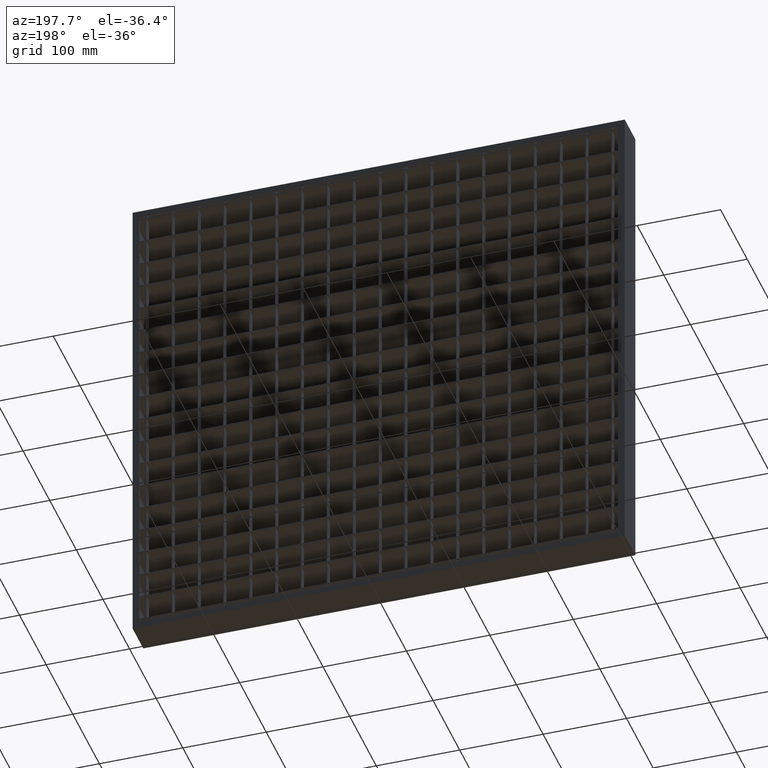
[diagram: clean part render]
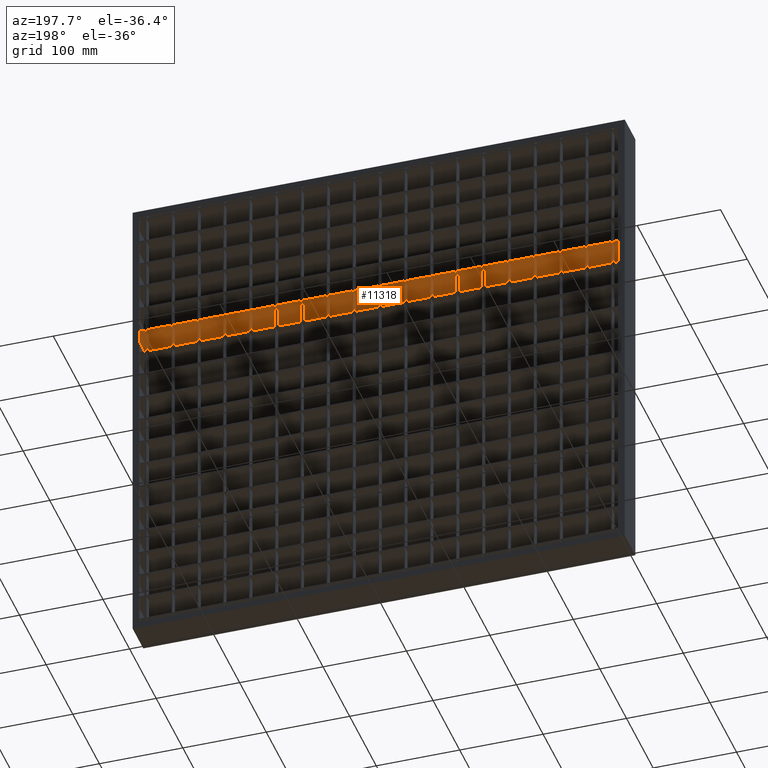
[diagram: same view with one face highlighted and labeled with its STEP entity id]
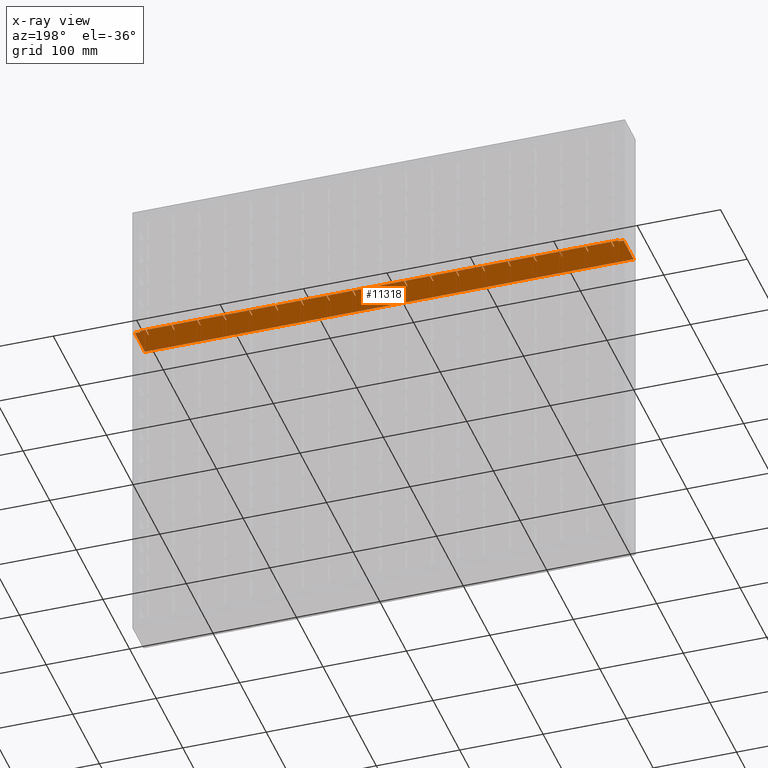
[diagram: x-ray of the same camera — body ghosted, the highlighted face saturated]
A machine part, auxiliary view. The second image highlights one B-rep face of the part: STEP entity #11318.
The next image is the same camera in x-ray: the body ghosted, the highlighted face saturated — about 0% of this face is hidden behind the body in this view.
In plain terms, the highlighted planar face has unit normal (0, 0, -1).
Its self-contained STEP definition (entity closure, byte-faithful):
#20 = CARTESIAN_POINT ( 'NONE',  ( 46.50000000000004300, 9.999999999999994700, -169.7500000000000600 ) ) ;
#23 = EDGE_CURVE ( 'NONE', #24355, #8506, #13608, .T. ) ;
#151 = VERTEX_POINT ( 'NONE', #36974 ) ;
#196 = ORIENTED_EDGE ( 'NONE', *, *, #32347, .T. ) ;
#248 = CARTESIAN_POINT ( 'NONE',  ( 588.0000000000001100, -20.00000000000000000, -169.7500000000000600 ) ) ;
#404 = LINE ( 'NONE', #51896, #36205 ) ;
#421 = LINE ( 'NONE', #53580, #6488 ) ;
#433 = CARTESIAN_POINT ( 'NONE',  ( 232.5000000000000300, 9.999999999999994700, -169.7500000000000600 ) ) ;
#435 = VERTEX_POINT ( 'NONE', #773 ) ;
#518 = VECTOR ( 'NONE', #14123, 1000.000000000000000 ) ;
#688 = VECTOR ( 'NONE', #8938, 1000.000000000000000 ) ;
#773 = CARTESIAN_POINT ( 'NONE',  ( 170.5000000000000300, 20.00000000000005300, -169.7500000000000600 ) ) ;
#902 = EDGE_CURVE ( 'NONE', #29369, #43824, #22272, .T. ) ;
#916 = DIRECTION ( 'NONE',  ( -1.000000000000000000, -3.061616997868382600E-016, 0.0000000000000000000 ) ) ;
#947 = CARTESIAN_POINT ( 'NONE',  ( 108.5000000000000400, 9.999999999999994700, -169.7500000000000600 ) ) ;
#1045 = LINE ( 'NONE', #6038, #16533 ) ;
#1052 = LINE ( 'NONE', #11525, #17246 ) ;
#1097 = CARTESIAN_POINT ( 'NONE',  ( 574.5000000000000000, 9.999999999999994700, -169.7500000000000600 ) ) ;
#1139 = CARTESIAN_POINT ( 'NONE',  ( 109.5000000000000400, 19.99999999999999600, -169.7500000000000600 ) ) ;
#1183 = VECTOR ( 'NONE', #30136, 1000.000000000000000 ) ;
#1189 = VECTOR ( 'NONE', #29413, 1000.000000000000000 ) ;
#1438 = CARTESIAN_POINT ( 'NONE',  ( 263.5000000000000600, -19.99999999999981200, -169.7500000000000600 ) ) ;
#1540 = VERTEX_POINT ( 'NONE', #41808 ) ;
#1562 = CARTESIAN_POINT ( 'NONE',  ( 77.50000000000001400, -19.99999999999981200, -169.7500000000000600 ) ) ;
#1578 = LINE ( 'NONE', #46264, #47530 ) ;
#1651 = VECTOR ( 'NONE', #22615, 1000.000000000000000 ) ;
#1774 = CARTESIAN_POINT ( 'NONE',  ( 628.0281151192510800, 20.00000000000019200, -169.7500000000000600 ) ) ;
#1831 = EDGE_CURVE ( 'NONE', #41408, #37181, #28867, .T. ) ;
#1832 = LINE ( 'NONE', #56002, #45073 ) ;
#1859 = LINE ( 'NONE', #36222, #18073 ) ;
#1971 = EDGE_CURVE ( 'NONE', #29369, #11925, #42375, .T. ) ;
#2193 = CARTESIAN_POINT ( 'NONE',  ( 628.0281151192510800, 9.999999999999994700, -169.7500000000000600 ) ) ;
#2228 = VECTOR ( 'NONE', #37198, 1000.000000000000000 ) ;
#2237 = LINE ( 'NONE', #54250, #46827 ) ;
#2324 = CARTESIAN_POINT ( 'NONE',  ( 387.5000000000000000, 9.999999999999998200, -169.7500000000000600 ) ) ;
#2387 = DIRECTION ( 'NONE',  ( 1.000000000000000000, -0.0000000000000000000, 0.0000000000000000000 ) ) ;
#2444 = DIRECTION ( 'NONE',  ( 0.0000000000000000000, 1.000000000000000000, 0.0000000000000000000 ) ) ;
#2677 = ORIENTED_EDGE ( 'NONE', *, *, #34980, .F. ) ;
#2684 = EDGE_CURVE ( 'NONE', #31565, #25357, #33457, .T. ) ;
#2763 = VECTOR ( 'NONE', #9502, 1000.000000000000000 ) ;
#2810 = VECTOR ( 'NONE', #2444, 1000.000000000000000 ) ;
#2815 = LINE ( 'NONE', #6553, #32555 ) ;
#3243 = CARTESIAN_POINT ( 'NONE',  ( 202.5000000000000300, 19.99999999999999600, -169.7500000000000600 ) ) ;
#3412 = EDGE_CURVE ( 'NONE', #39621, #24695, #1045, .T. ) ;
#3437 = ORIENTED_EDGE ( 'NONE', *, *, #26130, .F. ) ;
#3524 = VECTOR ( 'NONE', #40725, 1000.000000000000000 ) ;
#3547 = CARTESIAN_POINT ( 'NONE',  ( 263.5000000000000600, 9.999999999999994700, -169.7500000000000600 ) ) ;
#3649 = CARTESIAN_POINT ( 'NONE',  ( 108.5000000000000400, 20.00000000000003200, -169.7500000000000600 ) ) ;
#3917 = CARTESIAN_POINT ( 'NONE',  ( 543.5000000000001100, 9.999999999999994700, -169.7500000000000600 ) ) ;
#3944 = VERTEX_POINT ( 'NONE', #12329 ) ;
#3965 = EDGE_CURVE ( 'NONE', #16757, #35352, #31067, .T. ) ;
#4098 = ORIENTED_EDGE ( 'NONE', *, *, #33063, .T. ) ;
#4248 = ORIENTED_EDGE ( 'NONE', *, *, #18427, .F. ) ;
#4274 = ORIENTED_EDGE ( 'NONE', *, *, #38783, .F. ) ;
#4469 = DIRECTION ( 'NONE',  ( -1.000000000000000000, -3.061616997868382600E-016, 0.0000000000000000000 ) ) ;
#4506 = CARTESIAN_POINT ( 'NONE',  ( 201.5000000000000300, 9.999999999999994700, -169.7500000000000600 ) ) ;
#4580 = LINE ( 'NONE', #43235, #13360 ) ;
#4635 = LINE ( 'NONE', #52350, #52623 ) ;
#4770 = ORIENTED_EDGE ( 'NONE', *, *, #47706, .F. ) ;
#4771 = VERTEX_POINT ( 'NONE', #3243 ) ;
#4868 = CARTESIAN_POINT ( 'NONE',  ( 419.5000000000000600, -19.99999999999981200, -169.7500000000000600 ) ) ;
#4950 = LINE ( 'NONE', #20498, #15086 ) ;
#4956 = LINE ( 'NONE', #39809, #19783 ) ;
#5012 = FACE_OUTER_BOUND ( 'NONE', #30919, .T. ) ;
#5029 = EDGE_CURVE ( 'NONE', #53617, #24355, #32318, .T. ) ;
#5065 = DIRECTION ( 'NONE',  ( 1.000000000000000000, -0.0000000000000000000, 0.0000000000000000000 ) ) ;
#5112 = EDGE_CURVE ( 'NONE', #19612, #55160, #34327, .T. ) ;
#5123 = DIRECTION ( 'NONE',  ( 1.000000000000000000, -0.0000000000000000000, 0.0000000000000000000 ) ) ;
#5166 = CARTESIAN_POINT ( 'NONE',  ( 356.5000000000001100, -19.99999999999981200, -169.7500000000000600 ) ) ;
#5192 = DIRECTION ( 'NONE',  ( 0.0000000000000000000, -1.000000000000000000, 0.0000000000000000000 ) ) ;
#5461 = CARTESIAN_POINT ( 'NONE',  ( 628.0281151192510800, 9.999999999999994700, -169.7500000000000600 ) ) ;
#5524 = EDGE_CURVE ( 'NONE', #38790, #37200, #16050, .T. ) ;
#5794 = LINE ( 'NONE', #26516, #32108 ) ;
#5880 = VERTEX_POINT ( 'NONE', #54968 ) ;
#6009 = EDGE_CURVE ( 'NONE', #31320, #7472, #421, .T. ) ;
#6038 = CARTESIAN_POINT ( 'NONE',  ( 232.5000000000000300, -19.99999999999981200, -169.7500000000000600 ) ) ;
#6133 = VECTOR ( 'NONE', #2387, 1000.000000000000000 ) ;
#6221 = VECTOR ( 'NONE', #36874, 1000.000000000000000 ) ;
#6270 = EDGE_CURVE ( 'NONE', #8506, #20003, #29391, .T. ) ;
#6295 = DIRECTION ( 'NONE',  ( 1.000000000000000000, -0.0000000000000000000, 0.0000000000000000000 ) ) ;
#6324 = EDGE_CURVE ( 'NONE', #5880, #41543, #5794, .T. ) ;
#6327 = VECTOR ( 'NONE', #38660, 1000.000000000000000 ) ;
#6392 = DIRECTION ( 'NONE',  ( -1.000000000000000000, -3.061616997868382600E-016, 0.0000000000000000000 ) ) ;
#6406 = LINE ( 'NONE', #42851, #30795 ) ;
#6429 = EDGE_CURVE ( 'NONE', #28576, #43824, #24698, .T. ) ;
#6431 = CARTESIAN_POINT ( 'NONE',  ( 202.5000000000000300, 9.999999999999994700, -169.7500000000000600 ) ) ;
#6457 = VERTEX_POINT ( 'NONE', #14097 ) ;
#6488 = VECTOR ( 'NONE', #49626, 1000.000000000000000 ) ;
#6500 = EDGE_CURVE ( 'NONE', #18781, #18751, #38195, .T. ) ;
#6553 = CARTESIAN_POINT ( 'NONE',  ( 628.0281151192510800, 20.00000000000019200, -169.7500000000000600 ) ) ;
#6604 = EDGE_CURVE ( 'NONE', #44035, #9384, #35459, .T. ) ;
#6738 = LINE ( 'NONE', #21922, #15545 ) ;
#7001 = CARTESIAN_POINT ( 'NONE',  ( 628.0281151192510800, 20.00000000000019200, -169.7500000000000600 ) ) ;
#7018 = LINE ( 'NONE', #30896, #52950 ) ;
#7036 = CARTESIAN_POINT ( 'NONE',  ( 588.0000000000002300, 18.00000000000000400, -169.7500000000000600 ) ) ;
#7058 = LINE ( 'NONE', #40338, #34786 ) ;
#7350 = EDGE_CURVE ( 'NONE', #54487, #33828, #7018, .T. ) ;
#7354 = CARTESIAN_POINT ( 'NONE',  ( 387.5000000000000000, 19.99999999999999600, -169.7500000000000600 ) ) ;
#7400 = VERTEX_POINT ( 'NONE', #52605 ) ;
#7418 = VERTEX_POINT ( 'NONE', #47903 ) ;
#7472 = VERTEX_POINT ( 'NONE', #18986 ) ;
#7474 = DIRECTION ( 'NONE',  ( -1.000000000000000000, 0.0000000000000000000, 0.0000000000000000000 ) ) ;
#7535 = EDGE_CURVE ( 'NONE', #28987, #19612, #4956, .T. ) ;
#7545 = VERTEX_POINT ( 'NONE', #14472 ) ;
#7550 = VECTOR ( 'NONE', #24345, 1000.000000000000000 ) ;
#7607 = CARTESIAN_POINT ( 'NONE',  ( 294.5000000000000600, -19.99999999999981200, -169.7500000000000600 ) ) ;
#7699 = ORIENTED_EDGE ( 'NONE', *, *, #7535, .T. ) ;
#7737 = EDGE_CURVE ( 'NONE', #26276, #33112, #46142, .T. ) ;
#7812 = LINE ( 'NONE', #47200, #49063 ) ;
#7895 = ORIENTED_EDGE ( 'NONE', *, *, #34941, .F. ) ;
#7944 = ORIENTED_EDGE ( 'NONE', *, *, #34393, .F. ) ;
#8154 = LINE ( 'NONE', #37884, #52742 ) ;
#8285 = CARTESIAN_POINT ( 'NONE',  ( 2.000000000000003600, 18.00000000000000400, -169.7500000000000600 ) ) ;
#8315 = EDGE_CURVE ( 'NONE', #40728, #10917, #16985, .T. ) ;
#8345 = DIRECTION ( 'NONE',  ( 1.000000000000000000, -0.0000000000000000000, 0.0000000000000000000 ) ) ;
#8381 = ORIENTED_EDGE ( 'NONE', *, *, #36271, .F. ) ;
#8484 = CARTESIAN_POINT ( 'NONE',  ( 628.0281151192510800, 20.00000000000019200, -169.7500000000000600 ) ) ;
#8506 = VERTEX_POINT ( 'NONE', #51175 ) ;
#8699 = DIRECTION ( 'NONE',  ( -1.000000000000000000, -3.061616997868382600E-016, 0.0000000000000000000 ) ) ;
#8732 = VERTEX_POINT ( 'NONE', #35655 ) ;
#8938 = DIRECTION ( 'NONE',  ( 0.0000000000000000000, 1.000000000000000000, 0.0000000000000000000 ) ) ;
#8962 = LINE ( 'NONE', #16818, #52888 ) ;
#8998 = CARTESIAN_POINT ( 'NONE',  ( 388.5000000000000000, -19.99999999999981200, -169.7500000000000600 ) ) ;
#9085 = DIRECTION ( 'NONE',  ( -1.000000000000000000, 0.0000000000000000000, 0.0000000000000000000 ) ) ;
#9133 = LINE ( 'NONE', #13916, #18560 ) ;
#9153 = VECTOR ( 'NONE', #42438, 1000.000000000000000 ) ;
#9187 = LINE ( 'NONE', #33673, #20650 ) ;
#9256 = DIRECTION ( 'NONE',  ( 0.0000000000000000000, -1.000000000000000000, 0.0000000000000000000 ) ) ;
#9375 = VECTOR ( 'NONE', #27353, 1000.000000000000000 ) ;
#9384 = VERTEX_POINT ( 'NONE', #39652 ) ;
#9502 = DIRECTION ( 'NONE',  ( 0.0000000000000000000, -1.000000000000000000, 0.0000000000000000000 ) ) ;
#9631 = CARTESIAN_POINT ( 'NONE',  ( 588.0000000000001100, -19.99999999999981200, -169.7500000000000600 ) ) ;
#9707 = VERTEX_POINT ( 'NONE', #3649 ) ;
#9749 = ORIENTED_EDGE ( 'NONE', *, *, #19351, .F. ) ;
#9874 = VERTEX_POINT ( 'NONE', #248 ) ;
#10235 = EDGE_CURVE ( 'NONE', #3944, #36562, #46414, .T. ) ;
#10256 = DIRECTION ( 'NONE',  ( 0.0000000000000000000, 1.000000000000000000, 0.0000000000000000000 ) ) ;
#10271 = DIRECTION ( 'NONE',  ( 0.0000000000000000000, -1.000000000000000000, 0.0000000000000000000 ) ) ;
#10339 = CARTESIAN_POINT ( 'NONE',  ( 628.0281151192510800, 20.00000000000019200, -169.7500000000000600 ) ) ;
#10736 = ORIENTED_EDGE ( 'NONE', *, *, #11166, .F. ) ;
#10765 = VERTEX_POINT ( 'NONE', #947 ) ;
#10896 = EDGE_CURVE ( 'NONE', #43203, #49199, #19272, .T. ) ;
#10917 = VERTEX_POINT ( 'NONE', #3547 ) ;
#10987 = EDGE_CURVE ( 'NONE', #40866, #41408, #17200, .T. ) ;
#11000 = VECTOR ( 'NONE', #42660, 1000.000000000000000 ) ;
#11047 = VERTEX_POINT ( 'NONE', #4506 ) ;
#11048 = CARTESIAN_POINT ( 'NONE',  ( 628.0281151192510800, 9.999999999999994700, -169.7500000000000600 ) ) ;
#11166 = EDGE_CURVE ( 'NONE', #30888, #40866, #51649, .T. ) ;
#11318 = ADVANCED_FACE ( 'NONE', ( #5012 ), #25133, .T. ) ;
#11359 = CARTESIAN_POINT ( 'NONE',  ( 628.0281151192510800, 9.999999999999994700, -169.7500000000000600 ) ) ;
#11525 = CARTESIAN_POINT ( 'NONE',  ( 628.0281151192510800, 20.00000000000019200, -169.7500000000000600 ) ) ;
#11567 = CARTESIAN_POINT ( 'NONE',  ( 357.5000000000001100, 9.999999999999994700, -169.7500000000000600 ) ) ;
#11925 = VERTEX_POINT ( 'NONE', #2324 ) ;
#11930 = VERTEX_POINT ( 'NONE', #7036 ) ;
#11937 = LINE ( 'NONE', #48334, #51814 ) ;
#12030 = CARTESIAN_POINT ( 'NONE',  ( 2.000000000000003600, -20.00000000000000000, -169.7500000000001100 ) ) ;
#12037 = EDGE_CURVE ( 'NONE', #28229, #19904, #17717, .T. ) ;
#12041 = CARTESIAN_POINT ( 'NONE',  ( 171.5000000000000300, 9.999999999999994700, -169.7500000000000600 ) ) ;
#12113 = DIRECTION ( 'NONE',  ( 0.0000000000000000000, 1.000000000000000000, 0.0000000000000000000 ) ) ;
#12188 = DIRECTION ( 'NONE',  ( -1.000000000000000000, -3.061616997868382600E-016, 0.0000000000000000000 ) ) ;
#12192 = DIRECTION ( 'NONE',  ( 0.0000000000000000000, 1.000000000000000000, 0.0000000000000000000 ) ) ;
#12238 = VECTOR ( 'NONE', #35913, 1000.000000000000000 ) ;
#12329 = CARTESIAN_POINT ( 'NONE',  ( 77.50000000000004300, 9.999999999999994700, -169.7500000000000600 ) ) ;
#12375 = CARTESIAN_POINT ( 'NONE',  ( 480.5000000000000000, -19.99999999999981200, -169.7500000000000600 ) ) ;
#12439 = ORIENTED_EDGE ( 'NONE', *, *, #49816, .F. ) ;
#12571 = ORIENTED_EDGE ( 'NONE', *, *, #47478, .F. ) ;
#12833 = CARTESIAN_POINT ( 'NONE',  ( 628.0281151192510800, -19.99999999999981200, -169.7500000000000600 ) ) ;
#12930 = CARTESIAN_POINT ( 'NONE',  ( 388.5000000000000000, 19.99999999999999600, -169.7500000000000600 ) ) ;
#13036 = CARTESIAN_POINT ( 'NONE',  ( 78.50000000000004300, 19.99999999999999600, -169.7500000000000600 ) ) ;
#13096 = CARTESIAN_POINT ( 'NONE',  ( 46.49999999999998600, -19.99999999999981200, -169.7500000000000600 ) ) ;
#13191 = LINE ( 'NONE', #12833, #23959 ) ;
#13226 = VECTOR ( 'NONE', #42992, 1000.000000000000000 ) ;
#13260 = EDGE_CURVE ( 'NONE', #151, #44924, #36642, .T. ) ;
#13280 = ORIENTED_EDGE ( 'NONE', *, *, #902, .F. ) ;
#13360 = VECTOR ( 'NONE', #18123, 1000.000000000000000 ) ;
#13466 = CARTESIAN_POINT ( 'NONE',  ( 139.5000000000000000, 20.00000000000004300, -169.7500000000000600 ) ) ;
#13533 = ORIENTED_EDGE ( 'NONE', *, *, #5112, .T. ) ;
#13571 = VECTOR ( 'NONE', #49789, 1000.000000000000000 ) ;
#13608 = LINE ( 'NONE', #5461, #17670 ) ;
#13697 = VERTEX_POINT ( 'NONE', #48971 ) ;
#13712 = VERTEX_POINT ( 'NONE', #18754 ) ;
#13916 = CARTESIAN_POINT ( 'NONE',  ( 15.50000000000006900, -19.99999999999981200, -169.7500000000000600 ) ) ;
#14097 = CARTESIAN_POINT ( 'NONE',  ( 140.5000000000000300, 19.99999999999999600, -169.7500000000000600 ) ) ;
#14123 = DIRECTION ( 'NONE',  ( 0.0000000000000000000, 1.000000000000000000, 0.0000000000000000000 ) ) ;
#14217 = VERTEX_POINT ( 'NONE', #13036 ) ;
#14254 = VECTOR ( 'NONE', #15335, 1000.000000000000000 ) ;
#14329 = VERTEX_POINT ( 'NONE', #26962 ) ;
#14385 = LINE ( 'NONE', #10339, #17726 ) ;
#14420 = VERTEX_POINT ( 'NONE', #45318 ) ;
#14472 = CARTESIAN_POINT ( 'NONE',  ( 481.5000000000000000, 19.99999999999999600, -169.7500000000000600 ) ) ;
#14550 = VERTEX_POINT ( 'NONE', #12930 ) ;
#14563 = CARTESIAN_POINT ( 'NONE',  ( 295.0000000000000600, 18.00000000000000400, -169.7500000000000600 ) ) ;
#14728 = LINE ( 'NONE', #56059, #51867 ) ;
#14797 = VECTOR ( 'NONE', #4469, 1000.000000000000000 ) ;
#14800 = CARTESIAN_POINT ( 'NONE',  ( 387.5000000000000000, -19.99999999999981200, -169.7500000000000600 ) ) ;
#14894 = DIRECTION ( 'NONE',  ( 1.000000000000000000, -0.0000000000000000000, 0.0000000000000000000 ) ) ;
#14947 = EDGE_CURVE ( 'NONE', #31791, #54487, #6738, .T. ) ;
#15039 = CARTESIAN_POINT ( 'NONE',  ( 356.5000000000001100, 9.999999999999998200, -169.7500000000000600 ) ) ;
#15086 = VECTOR ( 'NONE', #51068, 1000.000000000000000 ) ;
#15234 = DIRECTION ( 'NONE',  ( 0.0000000000000000000, -1.000000000000000000, 0.0000000000000000000 ) ) ;
#15332 = ORIENTED_EDGE ( 'NONE', *, *, #18118, .F. ) ;
#15335 = DIRECTION ( 'NONE',  ( -1.000000000000000000, -3.061616997868382600E-016, 0.0000000000000000000 ) ) ;
#15363 = ORIENTED_EDGE ( 'NONE', *, *, #6500, .T. ) ;
#15422 = CARTESIAN_POINT ( 'NONE',  ( 628.0281151192510800, 20.00000000000019200, -169.7500000000000600 ) ) ;
#15479 = VECTOR ( 'NONE', #32221, 1000.000000000000000 ) ;
#15545 = VECTOR ( 'NONE', #8345, 1000.000000000000000 ) ;
#15606 = CARTESIAN_POINT ( 'NONE',  ( 628.0281151192510800, 9.999999999999994700, -169.7500000000000600 ) ) ;
#15708 = CARTESIAN_POINT ( 'NONE',  ( 449.5000000000000600, -19.99999999999981200, -169.7500000000000600 ) ) ;
#15789 = DIRECTION ( 'NONE',  ( 1.000000000000000000, -0.0000000000000000000, 0.0000000000000000000 ) ) ;
#16050 = LINE ( 'NONE', #55282, #1189 ) ;
#16076 = EDGE_CURVE ( 'NONE', #31511, #151, #55894, .T. ) ;
#16079 = ORIENTED_EDGE ( 'NONE', *, *, #3965, .F. ) ;
#16104 = EDGE_CURVE ( 'NONE', #14420, #40728, #1832, .T. ) ;
#16141 = DIRECTION ( 'NONE',  ( 0.0000000000000000000, -1.000000000000000000, 0.0000000000000000000 ) ) ;
#16533 = VECTOR ( 'NONE', #40620, 1000.000000000000000 ) ;
#16575 = DIRECTION ( 'NONE',  ( 0.0000000000000000000, 1.000000000000000000, 0.0000000000000000000 ) ) ;
#16668 = VERTEX_POINT ( 'NONE', #38005 ) ;
#16673 = VECTOR ( 'NONE', #10256, 1000.000000000000000 ) ;
#16757 = VERTEX_POINT ( 'NONE', #20 ) ;
#16818 = CARTESIAN_POINT ( 'NONE',  ( 628.0281151192510800, 9.999999999999994700, -169.7500000000000600 ) ) ;
#16985 = LINE ( 'NONE', #11359, #19751 ) ;
#17176 = LINE ( 'NONE', #38472, #6327 ) ;
#17200 = LINE ( 'NONE', #8484, #50995 ) ;
#17220 = ORIENTED_EDGE ( 'NONE', *, *, #49991, .F. ) ;
#17223 = ORIENTED_EDGE ( 'NONE', *, *, #52485, .F. ) ;
#17246 = VECTOR ( 'NONE', #28904, 1000.000000000000000 ) ;
#17408 = LINE ( 'NONE', #1774, #30235 ) ;
#17670 = VECTOR ( 'NONE', #14894, 1000.000000000000000 ) ;
#17717 = LINE ( 'NONE', #45191, #6221 ) ;
#17726 = VECTOR ( 'NONE', #31287, 1000.000000000000000 ) ;
#17756 = VECTOR ( 'NONE', #6295, 1000.000000000000000 ) ;
#17865 = EDGE_CURVE ( 'NONE', #5880, #31791, #44833, .T. ) ;
#17871 = EDGE_CURVE ( 'NONE', #37181, #10765, #40789, .T. ) ;
#17950 = CARTESIAN_POINT ( 'NONE',  ( 170.5000000000000300, 9.999999999999994700, -169.7500000000000600 ) ) ;
#18073 = VECTOR ( 'NONE', #6392, 1000.000000000000000 ) ;
#18100 = CARTESIAN_POINT ( 'NONE',  ( 628.0281151192510800, 9.999999999999994700, -169.7500000000000600 ) ) ;
#18118 = EDGE_CURVE ( 'NONE', #13712, #3944, #8962, .T. ) ;
#18123 = DIRECTION ( 'NONE',  ( -1.000000000000000000, -3.061616997868382600E-016, 0.0000000000000000000 ) ) ;
#18187 = DIRECTION ( 'NONE',  ( -1.000000000000000000, 0.0000000000000000000, 0.0000000000000000000 ) ) ;
#18336 = LINE ( 'NONE', #33876, #41317 ) ;
#18427 = EDGE_CURVE ( 'NONE', #6457, #16668, #2237, .T. ) ;
#18477 = ORIENTED_EDGE ( 'NONE', *, *, #6324, .F. ) ;
#18560 = VECTOR ( 'NONE', #39805, 1000.000000000000000 ) ;
#18731 = ORIENTED_EDGE ( 'NONE', *, *, #21240, .T. ) ;
#18751 = VERTEX_POINT ( 'NONE', #30996 ) ;
#18754 = CARTESIAN_POINT ( 'NONE',  ( 78.50000000000004300, 9.999999999999994700, -169.7500000000000600 ) ) ;
#18781 = VERTEX_POINT ( 'NONE', #39741 ) ;
#18870 = CARTESIAN_POINT ( 'NONE',  ( 419.5000000000000600, 19.99999999999999600, -169.7500000000000600 ) ) ;
#18887 = DIRECTION ( 'NONE',  ( 1.000000000000000000, 0.0000000000000000000, 0.0000000000000000000 ) ) ;
#18986 = CARTESIAN_POINT ( 'NONE',  ( 233.5000000000000300, 19.99999999999999600, -169.7500000000000600 ) ) ;
#19187 = EDGE_CURVE ( 'NONE', #13697, #36709, #6406, .T. ) ;
#19272 = LINE ( 'NONE', #55860, #34147 ) ;
#19306 = DIRECTION ( 'NONE',  ( -1.000000000000000000, 0.0000000000000000000, 0.0000000000000000000 ) ) ;
#19351 = EDGE_CURVE ( 'NONE', #19904, #16757, #404, .T. ) ;
#19467 = CARTESIAN_POINT ( 'NONE',  ( 16.49999999999995700, -19.99999999999981200, -169.7500000000000600 ) ) ;
#19514 = CARTESIAN_POINT ( 'NONE',  ( 628.0281151192510800, 9.999999999999994700, -169.7500000000000600 ) ) ;
#19581 = ORIENTED_EDGE ( 'NONE', *, *, #40696, .T. ) ;
#19612 = VERTEX_POINT ( 'NONE', #50183 ) ;
#19623 = CARTESIAN_POINT ( 'NONE',  ( 512.5000000000000000, 9.999999999999994700, -169.7500000000000600 ) ) ;
#19751 = VECTOR ( 'NONE', #19306, 1000.000000000000000 ) ;
#19783 = VECTOR ( 'NONE', #40546, 1000.000000000000000 ) ;
#19793 = EDGE_CURVE ( 'NONE', #45366, #14550, #23976, .T. ) ;
#19819 = DIRECTION ( 'NONE',  ( 0.0000000000000000000, -1.000000000000000000, 0.0000000000000000000 ) ) ;
#19836 = DIRECTION ( 'NONE',  ( 0.0000000000000000000, -1.000000000000000000, 0.0000000000000000000 ) ) ;
#19904 = VERTEX_POINT ( 'NONE', #48650 ) ;
#19975 = EDGE_CURVE ( 'NONE', #7400, #44035, #9133, .T. ) ;
#20003 = VERTEX_POINT ( 'NONE', #53339 ) ;
#20121 = ORIENTED_EDGE ( 'NONE', *, *, #3412, .F. ) ;
#20364 = DIRECTION ( 'NONE',  ( 0.0000000000000000000, -1.000000000000000000, 0.0000000000000000000 ) ) ;
#20438 = VECTOR ( 'NONE', #5065, 1000.000000000000000 ) ;
#20498 = CARTESIAN_POINT ( 'NONE',  ( 574.5000000000000000, -19.99999999999981200, -169.7500000000000600 ) ) ;
#20571 = VECTOR ( 'NONE', #20364, 1000.000000000000000 ) ;
#20650 = VECTOR ( 'NONE', #42397, 1000.000000000000000 ) ;
#20775 = VECTOR ( 'NONE', #15234, 1000.000000000000000 ) ;
#20785 = ORIENTED_EDGE ( 'NONE', *, *, #6429, .T. ) ;
#20816 = DIRECTION ( 'NONE',  ( 0.0000000000000000000, 1.000000000000000000, 0.0000000000000000000 ) ) ;
#20903 = VECTOR ( 'NONE', #35667, 1000.000000000000000 ) ;
#20911 = EDGE_CURVE ( 'NONE', #16668, #30888, #27169, .T. ) ;
#20967 = LINE ( 'NONE', #2193, #6133 ) ;
#21028 = ORIENTED_EDGE ( 'NONE', *, *, #47318, .F. ) ;
#21184 = CARTESIAN_POINT ( 'NONE',  ( 512.5000000000000000, 19.99999999999999600, -169.7500000000000600 ) ) ;
#21240 = EDGE_CURVE ( 'NONE', #52024, #9384, #36616, .T. ) ;
#21266 = ORIENTED_EDGE ( 'NONE', *, *, #10987, .F. ) ;
#21323 = ORIENTED_EDGE ( 'NONE', *, *, #20911, .F. ) ;
#21396 = ORIENTED_EDGE ( 'NONE', *, *, #1971, .T. ) ;
#21430 = ORIENTED_EDGE ( 'NONE', *, *, #42572, .F. ) ;
#21633 = DIRECTION ( 'NONE',  ( 0.0000000000000000000, 1.000000000000000000, 0.0000000000000000000 ) ) ;
#21881 = DIRECTION ( 'NONE',  ( -1.000000000000000000, 0.0000000000000000000, 0.0000000000000000000 ) ) ;
#21922 = CARTESIAN_POINT ( 'NONE',  ( 628.0281151192510800, 9.999999999999994700, -169.7500000000000600 ) ) ;
#22001 = LINE ( 'NONE', #37023, #34832 ) ;
#22203 = CARTESIAN_POINT ( 'NONE',  ( 77.50000000000001400, 20.00000000000002100, -169.7500000000000600 ) ) ;
#22272 = LINE ( 'NONE', #47174, #55363 ) ;
#22281 = VECTOR ( 'NONE', #55972, 1000.000000000000000 ) ;
#22294 = EDGE_CURVE ( 'NONE', #9874, #11930, #34400, .T. ) ;
#22615 = DIRECTION ( 'NONE',  ( 0.0000000000000000000, 1.000000000000000000, 0.0000000000000000000 ) ) ;
#22618 = ORIENTED_EDGE ( 'NONE', *, *, #16076, .T. ) ;
#22806 = ORIENTED_EDGE ( 'NONE', *, *, #10896, .T. ) ;
#22880 = CARTESIAN_POINT ( 'NONE',  ( 325.5000000000000600, 19.99999999999999600, -169.7500000000000600 ) ) ;
#22909 = EDGE_CURVE ( 'NONE', #33938, #52525, #46500, .T. ) ;
#23419 = CARTESIAN_POINT ( 'NONE',  ( 573.5000000000001100, 19.99999999999999600, -169.7500000000000600 ) ) ;
#23447 = ORIENTED_EDGE ( 'NONE', *, *, #24134, .F. ) ;
#23540 = CARTESIAN_POINT ( 'NONE',  ( 294.5000000000000600, 20.00000000000009200, -169.7500000000000600 ) ) ;
#23735 = LINE ( 'NONE', #26861, #12238 ) ;
#23959 = VECTOR ( 'NONE', #8699, 1000.000000000000000 ) ;
#23976 = LINE ( 'NONE', #8998, #51654 ) ;
#24124 = LINE ( 'NONE', #34387, #43032 ) ;
#24134 = EDGE_CURVE ( 'NONE', #46672, #11047, #9187, .T. ) ;
#24345 = DIRECTION ( 'NONE',  ( -1.000000000000000000, -3.061616997868382600E-016, 0.0000000000000000000 ) ) ;
#24355 = VERTEX_POINT ( 'NONE', #39758 ) ;
#24586 = ORIENTED_EDGE ( 'NONE', *, *, #51926, .F. ) ;
#24695 = VERTEX_POINT ( 'NONE', #24766 ) ;
#24698 = LINE ( 'NONE', #38653, #13226 ) ;
#24725 = ORIENTED_EDGE ( 'NONE', *, *, #17871, .F. ) ;
#24766 = CARTESIAN_POINT ( 'NONE',  ( 232.4999999999999700, 20.00000000000007100, -169.7500000000000600 ) ) ;
#24813 = VECTOR ( 'NONE', #45009, 1000.000000000000000 ) ;
#24862 = CARTESIAN_POINT ( 'NONE',  ( 264.5000000000000600, 9.999999999999994700, -169.7500000000000600 ) ) ;
#25041 = CARTESIAN_POINT ( 'NONE',  ( 326.5000000000000600, -19.99999999999981200, -169.7500000000000600 ) ) ;
#25133 = PLANE ( 'NONE',  #37412 ) ;
#25357 = VERTEX_POINT ( 'NONE', #43406 ) ;
#25432 = EDGE_CURVE ( 'NONE', #11925, #45366, #46755, .T. ) ;
#25452 = DIRECTION ( 'NONE',  ( -1.000000000000000000, -3.061616997868382600E-016, 0.0000000000000000000 ) ) ;
#25458 = EDGE_CURVE ( 'NONE', #25357, #41543, #33900, .T. ) ;
#25608 = CARTESIAN_POINT ( 'NONE',  ( 418.5000000000000600, 9.999999999999998200, -169.7500000000000600 ) ) ;
#25677 = CARTESIAN_POINT ( 'NONE',  ( 628.0281151192510800, 9.999999999999994700, -169.7500000000000600 ) ) ;
#25817 = DIRECTION ( 'NONE',  ( -1.000000000000000000, -3.061616997868382600E-016, 0.0000000000000000000 ) ) ;
#25850 = VECTOR ( 'NONE', #15789, 1000.000000000000000 ) ;
#25958 = VERTEX_POINT ( 'NONE', #43140 ) ;
#25977 = CARTESIAN_POINT ( 'NONE',  ( 628.0281151192510800, 20.00000000000019200, -169.7500000000000600 ) ) ;
#26130 = EDGE_CURVE ( 'NONE', #53617, #33938, #23735, .T. ) ;
#26251 = LINE ( 'NONE', #25977, #14797 ) ;
#26276 = VERTEX_POINT ( 'NONE', #3917 ) ;
#26516 = CARTESIAN_POINT ( 'NONE',  ( 628.0281151192510800, 20.00000000000019200, -169.7500000000000600 ) ) ;
#26742 = ORIENTED_EDGE ( 'NONE', *, *, #26948, .F. ) ;
#26809 = CARTESIAN_POINT ( 'NONE',  ( 511.5000000000000600, 9.999999999999998200, -169.7500000000000600 ) ) ;
#26861 = CARTESIAN_POINT ( 'NONE',  ( 628.0281151192510800, 20.00000000000019200, -169.7500000000000600 ) ) ;
#26893 = ORIENTED_EDGE ( 'NONE', *, *, #1831, .F. ) ;
#26940 = ORIENTED_EDGE ( 'NONE', *, *, #10235, .F. ) ;
#26945 = LINE ( 'NONE', #51115, #37808 ) ;
#26948 = EDGE_CURVE ( 'NONE', #25958, #7400, #51371, .T. ) ;
#26951 = CARTESIAN_POINT ( 'NONE',  ( 450.5000000000000600, 19.99999999999999600, -169.7500000000000600 ) ) ;
#26962 = CARTESIAN_POINT ( 'NONE',  ( 16.50000000000001400, 19.99999999999999600, -169.7500000000001700 ) ) ;
#26967 = ORIENTED_EDGE ( 'NONE', *, *, #46200, .F. ) ;
#26971 = EDGE_CURVE ( 'NONE', #18751, #26276, #20967, .T. ) ;
#27106 = EDGE_CURVE ( 'NONE', #27966, #28576, #40582, .T. ) ;
#27153 = VERTEX_POINT ( 'NONE', #38810 ) ;
#27169 = LINE ( 'NONE', #25677, #42751 ) ;
#27353 = DIRECTION ( 'NONE',  ( 0.0000000000000000000, -1.000000000000000000, 0.0000000000000000000 ) ) ;
#27492 = VECTOR ( 'NONE', #5192, 1000.000000000000000 ) ;
#27495 = CARTESIAN_POINT ( 'NONE',  ( 295.5000000000000600, 9.999999999999994700, -169.7500000000000600 ) ) ;
#27552 = ORIENTED_EDGE ( 'NONE', *, *, #36495, .F. ) ;
#27875 = CARTESIAN_POINT ( 'NONE',  ( 295.5000000000000600, 19.99999999999999600, -169.7500000000000600 ) ) ;
#27966 = VERTEX_POINT ( 'NONE', #15039 ) ;
#28038 = VECTOR ( 'NONE', #40571, 1000.000000000000000 ) ;
#28229 = VERTEX_POINT ( 'NONE', #39399 ) ;
#28500 = DIRECTION ( 'NONE',  ( 0.0000000000000000000, 1.000000000000000000, 0.0000000000000000000 ) ) ;
#28510 = DIRECTION ( 'NONE',  ( 0.0000000000000000000, 1.000000000000000000, 0.0000000000000000000 ) ) ;
#28568 = EDGE_CURVE ( 'NONE', #53656, #20003, #17408, .T. ) ;
#28576 = VERTEX_POINT ( 'NONE', #11567 ) ;
#28816 = EDGE_CURVE ( 'NONE', #11047, #8732, #24124, .T. ) ;
#28867 = LINE ( 'NONE', #52928, #27492 ) ;
#28904 = DIRECTION ( 'NONE',  ( -1.000000000000000000, -3.061616997868382600E-016, 0.0000000000000000000 ) ) ;
#28972 = DIRECTION ( 'NONE',  ( -1.000000000000000000, -3.061616997868382600E-016, 0.0000000000000000000 ) ) ;
#28987 = VERTEX_POINT ( 'NONE', #23419 ) ;
#29012 = CARTESIAN_POINT ( 'NONE',  ( 388.5000000000000000, 9.999999999999994700, -169.7500000000000600 ) ) ;
#29015 = EDGE_CURVE ( 'NONE', #36709, #11930, #50459, .T. ) ;
#29016 = CARTESIAN_POINT ( 'NONE',  ( 511.5000000000000600, 19.99999999999999600, -169.7500000000000600 ) ) ;
#29144 = VECTOR ( 'NONE', #25817, 1000.000000000000000 ) ;
#29369 = VERTEX_POINT ( 'NONE', #7354 ) ;
#29391 = LINE ( 'NONE', #25041, #9153 ) ;
#29413 = DIRECTION ( 'NONE',  ( 0.0000000000000000000, 1.000000000000000000, 0.0000000000000000000 ) ) ;
#29492 = DIRECTION ( 'NONE',  ( 0.0000000000000000000, 0.0000000000000000000, -1.000000000000000000 ) ) ;
#29502 = CARTESIAN_POINT ( 'NONE',  ( 628.0281151192510800, 20.00000000000019200, -169.7500000000000600 ) ) ;
#29587 = VECTOR ( 'NONE', #28510, 1000.000000000000000 ) ;
#29611 = DIRECTION ( 'NONE',  ( 0.0000000000000000000, -1.000000000000000000, 0.0000000000000000000 ) ) ;
#29802 = ORIENTED_EDGE ( 'NONE', *, *, #54702, .F. ) ;
#29917 = VERTEX_POINT ( 'NONE', #23540 ) ;
#30048 = CARTESIAN_POINT ( 'NONE',  ( 628.0281151192510800, -19.99999999999981200, -169.7500000000000600 ) ) ;
#30136 = DIRECTION ( 'NONE',  ( 0.0000000000000000000, -1.000000000000000000, 0.0000000000000000000 ) ) ;
#30230 = ORIENTED_EDGE ( 'NONE', *, *, #22909, .F. ) ;
#30235 = VECTOR ( 'NONE', #32337, 1000.000000000000000 ) ;
#30255 = ORIENTED_EDGE ( 'NONE', *, *, #12037, .F. ) ;
#30366 = DIRECTION ( 'NONE',  ( -1.000000000000000000, 0.0000000000000000000, 0.0000000000000000000 ) ) ;
#30620 = CARTESIAN_POINT ( 'NONE',  ( 109.5000000000000400, 9.999999999999994700, -169.7500000000000600 ) ) ;
#30699 = ORIENTED_EDGE ( 'NONE', *, *, #41113, .F. ) ;
#30764 = VECTOR ( 'NONE', #12188, 1000.000000000000000 ) ;
#30795 = VECTOR ( 'NONE', #50603, 1000.000000000000000 ) ;
#30888 = VERTEX_POINT ( 'NONE', #42348 ) ;
#30896 = CARTESIAN_POINT ( 'NONE',  ( 450.5000000000000600, -19.99999999999981200, -169.7500000000000600 ) ) ;
#30919 = EDGE_LOOP ( 'NONE', ( #13533, #40519, #2677, #31552, #37310, #34070, #43638, #48308, #38011, #18731, #45870, #53320, #26742, #24586, #37830, #16079, #9749, #30255, #52340, #26940, #15332, #7895, #55704, #56017, #24725, #26893, #21266, #10736, #21323, #4248, #4770, #8381, #48172, #42459, #17223, #34205, #23447, #29802, #27552, #20121, #7944, #17220, #36173, #12439, #55812, #49586, #26967, #47580, #12571, #30230, #3437, #47901, #43711, #34733, #53469, #4098, #32335, #20785, #13280, #21396, #50209, #50555, #4274, #36508, #37436, #36149, #18477, #51271, #34312, #47621, #21430, #22618, #54192, #51037, #21028, #22806, #196, #19581, #30699, #15363, #50302, #35277, #55616, #7699 ) ) ;
#30996 = CARTESIAN_POINT ( 'NONE',  ( 542.5000000000000000, 9.999999999999998200, -169.7500000000000600 ) ) ;
#31067 = LINE ( 'NONE', #13096, #688 ) ;
#31279 = CARTESIAN_POINT ( 'NONE',  ( 139.5000000000000600, -19.99999999999981200, -169.7500000000000600 ) ) ;
#31287 = DIRECTION ( 'NONE',  ( -1.000000000000000000, -3.061616997868382600E-016, 0.0000000000000000000 ) ) ;
#31320 = VERTEX_POINT ( 'NONE', #51127 ) ;
#31398 = EDGE_CURVE ( 'NONE', #53067, #31565, #49613, .T. ) ;
#31511 = VERTEX_POINT ( 'NONE', #51493 ) ;
#31552 = ORIENTED_EDGE ( 'NONE', *, *, #19187, .T. ) ;
#31565 = VERTEX_POINT ( 'NONE', #25608 ) ;
#31630 = CARTESIAN_POINT ( 'NONE',  ( 542.5000000000000000, -19.99999999999981200, -169.7500000000000600 ) ) ;
#31791 = VERTEX_POINT ( 'NONE', #40182 ) ;
#32108 = VECTOR ( 'NONE', #43565, 1000.000000000000000 ) ;
#32221 = DIRECTION ( 'NONE',  ( 0.0000000000000000000, -1.000000000000000000, 0.0000000000000000000 ) ) ;
#32318 = LINE ( 'NONE', #48731, #9375 ) ;
#32335 = ORIENTED_EDGE ( 'NONE', *, *, #27106, .T. ) ;
#32337 = DIRECTION ( 'NONE',  ( -1.000000000000000000, -3.061616997868382600E-016, 0.0000000000000000000 ) ) ;
#32347 = EDGE_CURVE ( 'NONE', #49199, #49286, #48167, .T. ) ;
#32436 = CARTESIAN_POINT ( 'NONE',  ( 356.5000000000001100, 19.99999999999999600, -169.7500000000000600 ) ) ;
#32555 = VECTOR ( 'NONE', #36748, 1000.000000000000000 ) ;
#32593 = CARTESIAN_POINT ( 'NONE',  ( 628.0281151192510800, 20.00000000000019200, -169.7500000000000600 ) ) ;
#32856 = DIRECTION ( 'NONE',  ( -1.000000000000000000, 0.0000000000000000000, 0.0000000000000000000 ) ) ;
#33030 = CARTESIAN_POINT ( 'NONE',  ( 7.999999999999991100, 18.00000000000000400, -169.7500000000001100 ) ) ;
#33041 = VECTOR ( 'NONE', #33817, 1000.000000000000000 ) ;
#33063 = EDGE_CURVE ( 'NONE', #53656, #27966, #39275, .T. ) ;
#33112 = VERTEX_POINT ( 'NONE', #44058 ) ;
#33457 = LINE ( 'NONE', #36381, #28038 ) ;
#33673 = CARTESIAN_POINT ( 'NONE',  ( 628.0281151192510800, 9.999999999999994700, -169.7500000000000600 ) ) ;
#33817 = DIRECTION ( 'NONE',  ( -1.000000000000000000, -3.061616997868382600E-016, 0.0000000000000000000 ) ) ;
#33828 = VERTEX_POINT ( 'NONE', #26951 ) ;
#33876 = CARTESIAN_POINT ( 'NONE',  ( 628.0281151192510800, 9.999999999999994700, -169.7500000000000600 ) ) ;
#33900 = LINE ( 'NONE', #4868, #37333 ) ;
#33938 = VERTEX_POINT ( 'NONE', #27875 ) ;
#34040 = CARTESIAN_POINT ( 'NONE',  ( 450.5000000000000600, 9.999999999999994700, -169.7500000000000600 ) ) ;
#34070 = ORIENTED_EDGE ( 'NONE', *, *, #22294, .F. ) ;
#34147 = VECTOR ( 'NONE', #29611, 1000.000000000000000 ) ;
#34205 = ORIENTED_EDGE ( 'NONE', *, *, #28816, .F. ) ;
#34306 = LINE ( 'NONE', #54736, #29587 ) ;
#34312 = ORIENTED_EDGE ( 'NONE', *, *, #14947, .T. ) ;
#34327 = LINE ( 'NONE', #48178, #51180 ) ;
#34387 = CARTESIAN_POINT ( 'NONE',  ( 201.5000000000000000, -19.99999999999981200, -169.7500000000000600 ) ) ;
#34393 = EDGE_CURVE ( 'NONE', #7418, #39621, #4635, .T. ) ;
#34397 = LINE ( 'NONE', #29502, #33041 ) ;
#34400 = LINE ( 'NONE', #9631, #20903 ) ;
#34456 = DIRECTION ( 'NONE',  ( 0.0000000000000000000, -1.000000000000000000, 0.0000000000000000000 ) ) ;
#34476 = DIRECTION ( 'NONE',  ( 0.0000000000000000000, 1.000000000000000000, 0.0000000000000000000 ) ) ;
#34593 = EDGE_CURVE ( 'NONE', #44924, #7545, #34306, .T. ) ;
#34733 = ORIENTED_EDGE ( 'NONE', *, *, #6270, .T. ) ;
#34786 = VECTOR ( 'NONE', #10271, 1000.000000000000000 ) ;
#34832 = VECTOR ( 'NONE', #32856, 1000.000000000000000 ) ;
#34941 = EDGE_CURVE ( 'NONE', #14217, #13712, #14728, .T. ) ;
#34962 = LINE ( 'NONE', #1438, #518 ) ;
#34980 = EDGE_CURVE ( 'NONE', #13697, #55863, #4580, .T. ) ;
#35029 = EDGE_CURVE ( 'NONE', #36562, #28229, #11937, .T. ) ;
#35277 = ORIENTED_EDGE ( 'NONE', *, *, #7737, .T. ) ;
#35352 = VERTEX_POINT ( 'NONE', #41514 ) ;
#35426 = DIRECTION ( 'NONE',  ( 0.0000000000000000000, 1.000000000000000000, 0.0000000000000000000 ) ) ;
#35459 = LINE ( 'NONE', #15422, #40233 ) ;
#35539 = LINE ( 'NONE', #7607, #37565 ) ;
#35589 = DIRECTION ( 'NONE',  ( 0.0000000000000000000, -1.000000000000000000, 0.0000000000000000000 ) ) ;
#35655 = CARTESIAN_POINT ( 'NONE',  ( 201.5000000000000000, 20.00000000000006000, -169.7500000000000600 ) ) ;
#35667 = DIRECTION ( 'NONE',  ( 0.0000000000000000000, 1.000000000000000000, 0.0000000000000000000 ) ) ;
#35913 = DIRECTION ( 'NONE',  ( -1.000000000000000000, -3.061616997868382600E-016, 0.0000000000000000000 ) ) ;
#36149 = ORIENTED_EDGE ( 'NONE', *, *, #25458, .T. ) ;
#36173 = ORIENTED_EDGE ( 'NONE', *, *, #6009, .F. ) ;
#36205 = VECTOR ( 'NONE', #30366, 1000.000000000000000 ) ;
#36222 = CARTESIAN_POINT ( 'NONE',  ( 628.0281151192510800, 20.00000000000019200, -169.7500000000000600 ) ) ;
#36271 = EDGE_CURVE ( 'NONE', #41420, #435, #26945, .T. ) ;
#36381 = CARTESIAN_POINT ( 'NONE',  ( 628.0281151192510800, 9.999999999999994700, -169.7500000000000600 ) ) ;
#36495 = EDGE_CURVE ( 'NONE', #24695, #4771, #26251, .T. ) ;
#36508 = ORIENTED_EDGE ( 'NONE', *, *, #31398, .T. ) ;
#36562 = VERTEX_POINT ( 'NONE', #22203 ) ;
#36616 = LINE ( 'NONE', #49832, #2810 ) ;
#36642 = LINE ( 'NONE', #11048, #25850 ) ;
#36697 = CARTESIAN_POINT ( 'NONE',  ( 357.5000000000001100, 19.99999999999999600, -169.7500000000000600 ) ) ;
#36709 = VERTEX_POINT ( 'NONE', #44668 ) ;
#36748 = DIRECTION ( 'NONE',  ( -1.000000000000000000, -3.061616997868382600E-016, 0.0000000000000000000 ) ) ;
#36874 = DIRECTION ( 'NONE',  ( 0.0000000000000000000, -1.000000000000000000, 0.0000000000000000000 ) ) ;
#36974 = CARTESIAN_POINT ( 'NONE',  ( 480.5000000000000000, 9.999999999999998200, -169.7500000000000600 ) ) ;
#37023 = CARTESIAN_POINT ( 'NONE',  ( 628.0281151192510800, 9.999999999999994700, -169.7500000000000600 ) ) ;
#37181 = VERTEX_POINT ( 'NONE', #30620 ) ;
#37198 = DIRECTION ( 'NONE',  ( -1.000000000000000000, 0.0000000000000000000, 0.0000000000000000000 ) ) ;
#37200 = VERTEX_POINT ( 'NONE', #48408 ) ;
#37310 = ORIENTED_EDGE ( 'NONE', *, *, #29015, .T. ) ;
#37333 = VECTOR ( 'NONE', #35426, 1000.000000000000000 ) ;
#37412 = AXIS2_PLACEMENT_3D ( 'NONE', #30048, #29492, #55917 ) ;
#37436 = ORIENTED_EDGE ( 'NONE', *, *, #2684, .T. ) ;
#37565 = VECTOR ( 'NONE', #20816, 1000.000000000000000 ) ;
#37808 = VECTOR ( 'NONE', #16575, 1000.000000000000000 ) ;
#37830 = ORIENTED_EDGE ( 'NONE', *, *, #41523, .F. ) ;
#37884 = CARTESIAN_POINT ( 'NONE',  ( 512.5000000000000000, -19.99999999999981200, -169.7500000000000600 ) ) ;
#38005 = CARTESIAN_POINT ( 'NONE',  ( 140.5000000000000300, 9.999999999999994700, -169.7500000000000600 ) ) ;
#38011 = ORIENTED_EDGE ( 'NONE', *, *, #52238, .T. ) ;
#38185 = EDGE_CURVE ( 'NONE', #9707, #14217, #42268, .T. ) ;
#38195 = LINE ( 'NONE', #31630, #42262 ) ;
#38472 = CARTESIAN_POINT ( 'NONE',  ( 628.0281151192510800, 20.00000000000019200, -169.7500000000000600 ) ) ;
#38653 = CARTESIAN_POINT ( 'NONE',  ( 357.5000000000001100, -19.99999999999981200, -169.7500000000000600 ) ) ;
#38660 = DIRECTION ( 'NONE',  ( -1.000000000000000000, -3.061616997868382600E-016, 0.0000000000000000000 ) ) ;
#38783 = EDGE_CURVE ( 'NONE', #53067, #14550, #17176, .T. ) ;
#38790 = VERTEX_POINT ( 'NONE', #12030 ) ;
#38810 = CARTESIAN_POINT ( 'NONE',  ( 294.5000000000000600, 9.999999999999994700, -169.7500000000000600 ) ) ;
#39275 = LINE ( 'NONE', #5166, #2763 ) ;
#39399 = CARTESIAN_POINT ( 'NONE',  ( 47.50000000000004300, 19.99999999999999600, -169.7500000000000600 ) ) ;
#39621 = VERTEX_POINT ( 'NONE', #433 ) ;
#39652 = CARTESIAN_POINT ( 'NONE',  ( 7.999999999999991100, 20.00000000000000400, -169.7500000000002800 ) ) ;
#39741 = CARTESIAN_POINT ( 'NONE',  ( 542.5000000000000000, 19.99999999999999600, -169.7500000000000600 ) ) ;
#39758 = CARTESIAN_POINT ( 'NONE',  ( 325.5000000000000600, 9.999999999999998200, -169.7500000000000600 ) ) ;
#39805 = DIRECTION ( 'NONE',  ( 0.0000000000000000000, 1.000000000000000000, 0.0000000000000000000 ) ) ;
#39809 = CARTESIAN_POINT ( 'NONE',  ( 573.5000000000001100, -19.99999999999981200, -169.7500000000000600 ) ) ;
#40182 = CARTESIAN_POINT ( 'NONE',  ( 449.5000000000000600, 9.999999999999998200, -169.7500000000000600 ) ) ;
#40233 = VECTOR ( 'NONE', #28972, 1000.000000000000000 ) ;
#40329 = CARTESIAN_POINT ( 'NONE',  ( 574.5000000000000000, 19.99999999999999600, -169.7500000000000600 ) ) ;
#40338 = CARTESIAN_POINT ( 'NONE',  ( 202.5000000000000000, -19.99999999999981200, -169.7500000000000600 ) ) ;
#40519 = ORIENTED_EDGE ( 'NONE', *, *, #55620, .T. ) ;
#40546 = DIRECTION ( 'NONE',  ( 0.0000000000000000000, -1.000000000000000000, 0.0000000000000000000 ) ) ;
#40571 = DIRECTION ( 'NONE',  ( 1.000000000000000000, -0.0000000000000000000, 0.0000000000000000000 ) ) ;
#40582 = LINE ( 'NONE', #42954, #22281 ) ;
#40620 = DIRECTION ( 'NONE',  ( 0.0000000000000000000, 1.000000000000000000, 0.0000000000000000000 ) ) ;
#40696 = EDGE_CURVE ( 'NONE', #49286, #53462, #8154, .T. ) ;
#40725 = DIRECTION ( 'NONE',  ( 0.0000000000000000000, 1.000000000000000000, 0.0000000000000000000 ) ) ;
#40728 = VERTEX_POINT ( 'NONE', #24862 ) ;
#40789 = LINE ( 'NONE', #50042, #2228 ) ;
#40830 = VECTOR ( 'NONE', #19819, 1000.000000000000000 ) ;
#40866 = VERTEX_POINT ( 'NONE', #13466 ) ;
#41113 = EDGE_CURVE ( 'NONE', #18781, #53462, #47337, .T. ) ;
#41317 = VECTOR ( 'NONE', #7474, 1000.000000000000000 ) ;
#41408 = VERTEX_POINT ( 'NONE', #1139 ) ;
#41420 = VERTEX_POINT ( 'NONE', #17950 ) ;
#41514 = CARTESIAN_POINT ( 'NONE',  ( 46.50000000000009900, 20.00000000000001400, -169.7500000000000600 ) ) ;
#41523 = EDGE_CURVE ( 'NONE', #35352, #14329, #1859, .T. ) ;
#41543 = VERTEX_POINT ( 'NONE', #18870 ) ;
#41567 = CARTESIAN_POINT ( 'NONE',  ( 481.5000000000000000, 9.999999999999994700, -169.7500000000000600 ) ) ;
#41808 = CARTESIAN_POINT ( 'NONE',  ( 171.5000000000000300, 19.99999999999999600, -169.7500000000000600 ) ) ;
#42178 = EDGE_CURVE ( 'NONE', #27153, #29917, #35539, .T. ) ;
#42262 = VECTOR ( 'NONE', #35589, 1000.000000000000000 ) ;
#42268 = LINE ( 'NONE', #32593, #30764 ) ;
#42348 = CARTESIAN_POINT ( 'NONE',  ( 139.5000000000000300, 9.999999999999994700, -169.7500000000000600 ) ) ;
#42375 = LINE ( 'NONE', #14800, #24813 ) ;
#42397 = DIRECTION ( 'NONE',  ( -1.000000000000000000, 0.0000000000000000000, 0.0000000000000000000 ) ) ;
#42438 = DIRECTION ( 'NONE',  ( 0.0000000000000000000, 1.000000000000000000, 0.0000000000000000000 ) ) ;
#42459 = ORIENTED_EDGE ( 'NONE', *, *, #51085, .F. ) ;
#42572 = EDGE_CURVE ( 'NONE', #31511, #33828, #1052, .T. ) ;
#42660 = DIRECTION ( 'NONE',  ( 1.000000000000000000, 0.0000000000000000000, 0.0000000000000000000 ) ) ;
#42751 = VECTOR ( 'NONE', #9085, 1000.000000000000000 ) ;
#42758 = LINE ( 'NONE', #8285, #11000 ) ;
#42851 = CARTESIAN_POINT ( 'NONE',  ( 582.0000000000001100, 18.00000000000000400, -169.7500000000000600 ) ) ;
#42863 = EDGE_CURVE ( 'NONE', #9874, #38790, #13191, .T. ) ;
#42954 = CARTESIAN_POINT ( 'NONE',  ( 628.0281151192510800, 9.999999999999994700, -169.7500000000000600 ) ) ;
#42992 = DIRECTION ( 'NONE',  ( 0.0000000000000000000, 1.000000000000000000, 0.0000000000000000000 ) ) ;
#43032 = VECTOR ( 'NONE', #12113, 1000.000000000000000 ) ;
#43140 = CARTESIAN_POINT ( 'NONE',  ( 16.50000000000001400, 9.999999999999994700, -169.7500000000001700 ) ) ;
#43203 = VERTEX_POINT ( 'NONE', #29016 ) ;
#43235 = CARTESIAN_POINT ( 'NONE',  ( 628.0281151192510800, 20.00000000000019200, -169.7500000000000600 ) ) ;
#43406 = CARTESIAN_POINT ( 'NONE',  ( 419.5000000000000600, 9.999999999999994700, -169.7500000000000600 ) ) ;
#43565 = DIRECTION ( 'NONE',  ( -1.000000000000000000, -3.061616997868382600E-016, 0.0000000000000000000 ) ) ;
#43638 = ORIENTED_EDGE ( 'NONE', *, *, #42863, .T. ) ;
#43711 = ORIENTED_EDGE ( 'NONE', *, *, #23, .T. ) ;
#43824 = VERTEX_POINT ( 'NONE', #36697 ) ;
#44023 = LINE ( 'NONE', #48740, #29144 ) ;
#44035 = VERTEX_POINT ( 'NONE', #45962 ) ;
#44058 = CARTESIAN_POINT ( 'NONE',  ( 543.5000000000001100, 19.99999999999999600, -169.7500000000000600 ) ) ;
#44668 = CARTESIAN_POINT ( 'NONE',  ( 582.0000000000001100, 18.00000000000000400, -169.7500000000000600 ) ) ;
#44806 = EDGE_CURVE ( 'NONE', #28987, #33112, #47432, .T. ) ;
#44833 = LINE ( 'NONE', #15708, #48202 ) ;
#44924 = VERTEX_POINT ( 'NONE', #41567 ) ;
#45009 = DIRECTION ( 'NONE',  ( 0.0000000000000000000, -1.000000000000000000, 0.0000000000000000000 ) ) ;
#45073 = VECTOR ( 'NONE', #34456, 1000.000000000000000 ) ;
#45191 = CARTESIAN_POINT ( 'NONE',  ( 47.50000000000009900, -19.99999999999981200, -169.7500000000000600 ) ) ;
#45318 = CARTESIAN_POINT ( 'NONE',  ( 264.5000000000000600, 19.99999999999999600, -169.7500000000000600 ) ) ;
#45366 = VERTEX_POINT ( 'NONE', #29012 ) ;
#45870 = ORIENTED_EDGE ( 'NONE', *, *, #6604, .F. ) ;
#45962 = CARTESIAN_POINT ( 'NONE',  ( 15.50000000000006900, 20.00000000000000400, -169.7500000000000600 ) ) ;
#46142 = LINE ( 'NONE', #49936, #3524 ) ;
#46200 = EDGE_CURVE ( 'NONE', #29917, #14420, #34397, .T. ) ;
#46264 = CARTESIAN_POINT ( 'NONE',  ( 108.5000000000000400, -19.99999999999981200, -169.7500000000000600 ) ) ;
#46414 = LINE ( 'NONE', #1562, #16673 ) ;
#46468 = LINE ( 'NONE', #49786, #20775 ) ;
#46500 = LINE ( 'NONE', #50144, #15479 ) ;
#46672 = VERTEX_POINT ( 'NONE', #6431 ) ;
#46755 = LINE ( 'NONE', #18100, #20438 ) ;
#46827 = VECTOR ( 'NONE', #16141, 1000.000000000000000 ) ;
#47174 = CARTESIAN_POINT ( 'NONE',  ( 628.0281151192510800, 20.00000000000019200, -169.7500000000000600 ) ) ;
#47200 = CARTESIAN_POINT ( 'NONE',  ( 171.5000000000000300, -19.99999999999981200, -169.7500000000000600 ) ) ;
#47318 = EDGE_CURVE ( 'NONE', #43203, #7545, #2815, .T. ) ;
#47337 = LINE ( 'NONE', #7001, #14254 ) ;
#47432 = LINE ( 'NONE', #54166, #7550 ) ;
#47478 = EDGE_CURVE ( 'NONE', #52525, #27153, #18336, .T. ) ;
#47530 = VECTOR ( 'NONE', #28500, 1000.000000000000000 ) ;
#47580 = ORIENTED_EDGE ( 'NONE', *, *, #42178, .F. ) ;
#47621 = ORIENTED_EDGE ( 'NONE', *, *, #7350, .T. ) ;
#47706 = EDGE_CURVE ( 'NONE', #435, #6457, #44023, .T. ) ;
#47901 = ORIENTED_EDGE ( 'NONE', *, *, #5029, .T. ) ;
#47903 = CARTESIAN_POINT ( 'NONE',  ( 233.5000000000000300, 9.999999999999994700, -169.7500000000000600 ) ) ;
#48167 = LINE ( 'NONE', #19514, #17756 ) ;
#48172 = ORIENTED_EDGE ( 'NONE', *, *, #51017, .F. ) ;
#48178 = CARTESIAN_POINT ( 'NONE',  ( 628.0281151192510800, 9.999999999999994700, -169.7500000000000600 ) ) ;
#48202 = VECTOR ( 'NONE', #19836, 1000.000000000000000 ) ;
#48308 = ORIENTED_EDGE ( 'NONE', *, *, #5524, .T. ) ;
#48334 = CARTESIAN_POINT ( 'NONE',  ( 628.0281151192510800, 20.00000000000019200, -169.7500000000000600 ) ) ;
#48408 = CARTESIAN_POINT ( 'NONE',  ( 2.000000000000003600, 18.00000000000000400, -169.7500000000001100 ) ) ;
#48650 = CARTESIAN_POINT ( 'NONE',  ( 47.50000000000004300, 9.999999999999994700, -169.7500000000000600 ) ) ;
#48731 = CARTESIAN_POINT ( 'NONE',  ( 325.5000000000000600, -19.99999999999981200, -169.7500000000000600 ) ) ;
#48740 = CARTESIAN_POINT ( 'NONE',  ( 628.0281151192510800, 20.00000000000019200, -169.7500000000000600 ) ) ;
#48971 = CARTESIAN_POINT ( 'NONE',  ( 582.0000000000001100, 20.00000000000000000, -169.7500000000000600 ) ) ;
#49063 = VECTOR ( 'NONE', #55129, 1000.000000000000000 ) ;
#49199 = VERTEX_POINT ( 'NONE', #26809 ) ;
#49286 = VERTEX_POINT ( 'NONE', #19623 ) ;
#49586 = ORIENTED_EDGE ( 'NONE', *, *, #16104, .F. ) ;
#49613 = LINE ( 'NONE', #50747, #20571 ) ;
#49626 = DIRECTION ( 'NONE',  ( -1.000000000000000000, -3.061616997868382600E-016, 0.0000000000000000000 ) ) ;
#49786 = CARTESIAN_POINT ( 'NONE',  ( 233.5000000000000300, -19.99999999999981200, -169.7500000000000600 ) ) ;
#49789 = DIRECTION ( 'NONE',  ( -1.000000000000000000, 0.0000000000000000000, 0.0000000000000000000 ) ) ;
#49816 = EDGE_CURVE ( 'NONE', #10917, #31320, #34962, .T. ) ;
#49832 = CARTESIAN_POINT ( 'NONE',  ( 7.999999999999991100, 18.00000000000000400, -169.7500000000000600 ) ) ;
#49936 = CARTESIAN_POINT ( 'NONE',  ( 543.5000000000001100, -19.99999999999981200, -169.7500000000000600 ) ) ;
#49991 = EDGE_CURVE ( 'NONE', #7472, #7418, #46468, .T. ) ;
#50042 = CARTESIAN_POINT ( 'NONE',  ( 628.0281151192510800, 9.999999999999994700, -169.7500000000000600 ) ) ;
#50144 = CARTESIAN_POINT ( 'NONE',  ( 295.5000000000000600, -19.99999999999981200, -169.7500000000000600 ) ) ;
#50183 = CARTESIAN_POINT ( 'NONE',  ( 573.5000000000001100, 9.999999999999998200, -169.7500000000000600 ) ) ;
#50209 = ORIENTED_EDGE ( 'NONE', *, *, #25432, .T. ) ;
#50302 = ORIENTED_EDGE ( 'NONE', *, *, #26971, .T. ) ;
#50459 = LINE ( 'NONE', #14563, #51795 ) ;
#50555 = ORIENTED_EDGE ( 'NONE', *, *, #19793, .T. ) ;
#50603 = DIRECTION ( 'NONE',  ( 0.0000000000000000000, -1.000000000000000000, 0.0000000000000000000 ) ) ;
#50747 = CARTESIAN_POINT ( 'NONE',  ( 418.5000000000000600, -19.99999999999981200, -169.7500000000000600 ) ) ;
#50995 = VECTOR ( 'NONE', #55665, 1000.000000000000000 ) ;
#51017 = EDGE_CURVE ( 'NONE', #53752, #41420, #22001, .T. ) ;
#51037 = ORIENTED_EDGE ( 'NONE', *, *, #34593, .T. ) ;
#51068 = DIRECTION ( 'NONE',  ( 0.0000000000000000000, 1.000000000000000000, 0.0000000000000000000 ) ) ;
#51085 = EDGE_CURVE ( 'NONE', #1540, #53752, #7812, .T. ) ;
#51115 = CARTESIAN_POINT ( 'NONE',  ( 170.5000000000000300, -19.99999999999981200, -169.7500000000000600 ) ) ;
#51127 = CARTESIAN_POINT ( 'NONE',  ( 263.5000000000000600, 20.00000000000008200, -169.7500000000000600 ) ) ;
#51175 = CARTESIAN_POINT ( 'NONE',  ( 326.5000000000000600, 9.999999999999994700, -169.7500000000000600 ) ) ;
#51180 = VECTOR ( 'NONE', #5123, 1000.000000000000000 ) ;
#51271 = ORIENTED_EDGE ( 'NONE', *, *, #17865, .T. ) ;
#51371 = LINE ( 'NONE', #15606, #13571 ) ;
#51493 = CARTESIAN_POINT ( 'NONE',  ( 480.5000000000000000, 19.99999999999999600, -169.7500000000000600 ) ) ;
#51649 = LINE ( 'NONE', #31279, #1651 ) ;
#51654 = VECTOR ( 'NONE', #21633, 1000.000000000000000 ) ;
#51795 = VECTOR ( 'NONE', #18887, 1000.000000000000000 ) ;
#51814 = VECTOR ( 'NONE', #916, 1000.000000000000000 ) ;
#51867 = VECTOR ( 'NONE', #9256, 1000.000000000000000 ) ;
#51896 = CARTESIAN_POINT ( 'NONE',  ( 628.0281151192510800, 9.999999999999994700, -169.7500000000000600 ) ) ;
#51926 = EDGE_CURVE ( 'NONE', #14329, #25958, #52934, .T. ) ;
#52024 = VERTEX_POINT ( 'NONE', #33030 ) ;
#52050 = EDGE_CURVE ( 'NONE', #10765, #9707, #1578, .T. ) ;
#52202 = CARTESIAN_POINT ( 'NONE',  ( 418.5000000000000600, 19.99999999999999600, -169.7500000000000600 ) ) ;
#52238 = EDGE_CURVE ( 'NONE', #37200, #52024, #42758, .T. ) ;
#52340 = ORIENTED_EDGE ( 'NONE', *, *, #35029, .F. ) ;
#52350 = CARTESIAN_POINT ( 'NONE',  ( 628.0281151192510800, 9.999999999999994700, -169.7500000000000600 ) ) ;
#52485 = EDGE_CURVE ( 'NONE', #8732, #1540, #14385, .T. ) ;
#52525 = VERTEX_POINT ( 'NONE', #27495 ) ;
#52605 = CARTESIAN_POINT ( 'NONE',  ( 15.50000000000001400, 9.999999999999994700, -169.7500000000001700 ) ) ;
#52623 = VECTOR ( 'NONE', #18187, 1000.000000000000000 ) ;
#52742 = VECTOR ( 'NONE', #12192, 1000.000000000000000 ) ;
#52888 = VECTOR ( 'NONE', #21881, 1000.000000000000000 ) ;
#52928 = CARTESIAN_POINT ( 'NONE',  ( 109.5000000000000400, -19.99999999999981200, -169.7500000000000600 ) ) ;
#52934 = LINE ( 'NONE', #19467, #40830 ) ;
#52950 = VECTOR ( 'NONE', #34476, 1000.000000000000000 ) ;
#53067 = VERTEX_POINT ( 'NONE', #52202 ) ;
#53320 = ORIENTED_EDGE ( 'NONE', *, *, #19975, .F. ) ;
#53339 = CARTESIAN_POINT ( 'NONE',  ( 326.5000000000000600, 19.99999999999999600, -169.7500000000000600 ) ) ;
#53462 = VERTEX_POINT ( 'NONE', #21184 ) ;
#53469 = ORIENTED_EDGE ( 'NONE', *, *, #28568, .F. ) ;
#53580 = CARTESIAN_POINT ( 'NONE',  ( 628.0281151192510800, 20.00000000000019200, -169.7500000000000600 ) ) ;
#53617 = VERTEX_POINT ( 'NONE', #22880 ) ;
#53656 = VERTEX_POINT ( 'NONE', #32436 ) ;
#53752 = VERTEX_POINT ( 'NONE', #12041 ) ;
#54166 = CARTESIAN_POINT ( 'NONE',  ( 628.0281151192510800, 20.00000000000019200, -169.7500000000000600 ) ) ;
#54192 = ORIENTED_EDGE ( 'NONE', *, *, #13260, .T. ) ;
#54250 = CARTESIAN_POINT ( 'NONE',  ( 140.5000000000000600, -19.99999999999981200, -169.7500000000000600 ) ) ;
#54487 = VERTEX_POINT ( 'NONE', #34040 ) ;
#54702 = EDGE_CURVE ( 'NONE', #4771, #46672, #7058, .T. ) ;
#54736 = CARTESIAN_POINT ( 'NONE',  ( 481.5000000000000000, -19.99999999999981200, -169.7500000000000600 ) ) ;
#54968 = CARTESIAN_POINT ( 'NONE',  ( 449.5000000000000600, 19.99999999999999600, -169.7500000000000600 ) ) ;
#55129 = DIRECTION ( 'NONE',  ( 0.0000000000000000000, -1.000000000000000000, 0.0000000000000000000 ) ) ;
#55160 = VERTEX_POINT ( 'NONE', #1097 ) ;
#55282 = CARTESIAN_POINT ( 'NONE',  ( 2.000000000000003600, -20.00000000000000000, -169.7500000000000600 ) ) ;
#55363 = VECTOR ( 'NONE', #25452, 1000.000000000000000 ) ;
#55616 = ORIENTED_EDGE ( 'NONE', *, *, #44806, .F. ) ;
#55620 = EDGE_CURVE ( 'NONE', #55160, #55863, #4950, .T. ) ;
#55665 = DIRECTION ( 'NONE',  ( -1.000000000000000000, -3.061616997868382600E-016, 0.0000000000000000000 ) ) ;
#55704 = ORIENTED_EDGE ( 'NONE', *, *, #38185, .F. ) ;
#55812 = ORIENTED_EDGE ( 'NONE', *, *, #8315, .F. ) ;
#55860 = CARTESIAN_POINT ( 'NONE',  ( 511.5000000000000600, -19.99999999999981200, -169.7500000000000600 ) ) ;
#55863 = VERTEX_POINT ( 'NONE', #40329 ) ;
#55894 = LINE ( 'NONE', #12375, #1183 ) ;
#55917 = DIRECTION ( 'NONE',  ( -1.000000000000000000, 0.0000000000000000000, 0.0000000000000000000 ) ) ;
#55972 = DIRECTION ( 'NONE',  ( 1.000000000000000000, -0.0000000000000000000, 0.0000000000000000000 ) ) ;
#56002 = CARTESIAN_POINT ( 'NONE',  ( 264.5000000000000600, -19.99999999999981200, -169.7500000000000600 ) ) ;
#56017 = ORIENTED_EDGE ( 'NONE', *, *, #52050, .F. ) ;
#56059 = CARTESIAN_POINT ( 'NONE',  ( 78.50000000000001400, -19.99999999999981200, -169.7500000000000600 ) ) ;